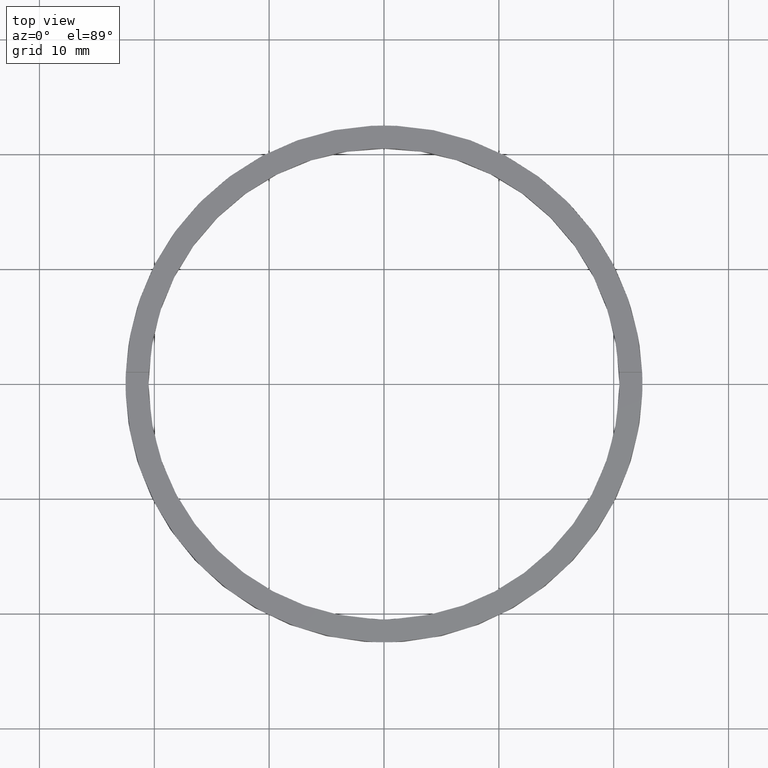
[diagram: clean part render]
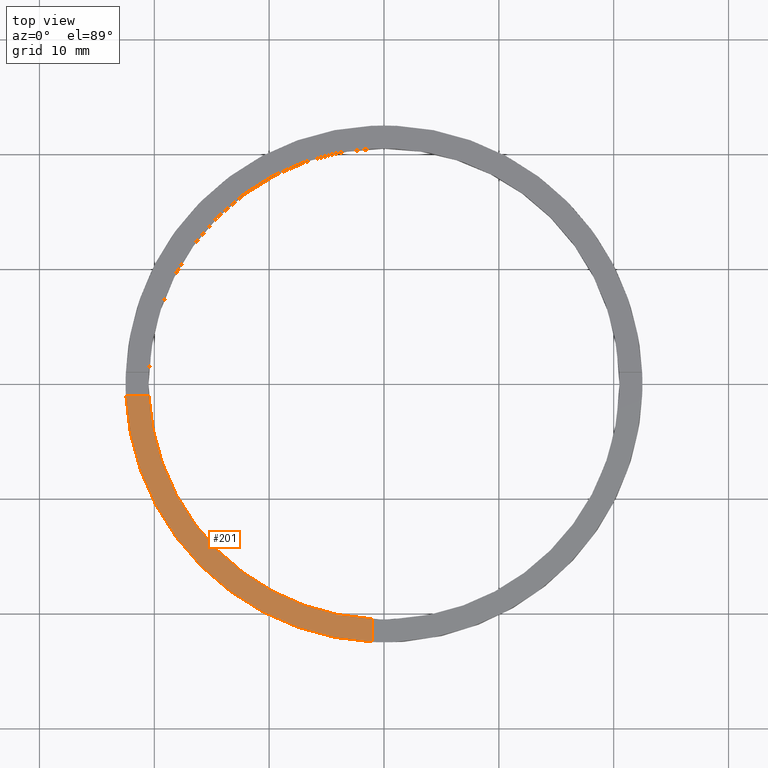
[diagram: same view with one face highlighted and labeled with its STEP entity id]
A machine part, top view. The second image highlights one B-rep face of the part: STEP entity #201.
In plain terms, the highlighted planar face has unit normal (0, 0, 1).
Its self-contained STEP definition (entity closure, byte-faithful):
#25 = VERTEX_POINT ( 'NONE', #86 ) ;
#27 = DIRECTION ( 'NONE',  ( 1.000000000000000000, 0.000000000000000000, -0.000000000000000000 ) ) ;
#39 = CIRCLE ( 'NONE', #140, 22.50000000000000355 ) ;
#41 = CIRCLE ( 'NONE', #583, 20.50000000000000000 ) ;
#46 = DIRECTION ( 'NONE',  ( 1.000000000000000000, 0.000000000000000000, 0.000000000000000000 ) ) ;
#53 = EDGE_LOOP ( 'NONE', ( #351, #589, #71, #181 ) ) ;
#71 = ORIENTED_EDGE ( 'NONE', *, *, #354, .F. ) ;
#86 = CARTESIAN_POINT ( 'NONE',  ( -20.47559522944326815, -1.000000000000024869, 2.500000000000000000 ) ) ;
#93 = VECTOR ( 'NONE', #641, 1000.000000000000000 ) ;
#106 = LINE ( 'NONE', #273, #632 ) ;
#140 = AXIS2_PLACEMENT_3D ( 'NONE', #660, #409, #46 ) ;
#158 = CARTESIAN_POINT ( 'NONE',  ( -1.000000000000161204, -20.47559522944325749, 2.500000000000000000 ) ) ;
#181 = ORIENTED_EDGE ( 'NONE', *, *, #769, .T. ) ;
#192 = CARTESIAN_POINT ( 'NONE',  ( 0.000000000000000000, 0.000000000000000000, 2.500000000000000000 ) ) ;
#201 = ADVANCED_FACE ( 'NONE', ( #333 ), #743, .T. ) ;
#237 = CARTESIAN_POINT ( 'NONE',  ( -1.000000000000160982, -22.47776679298901570, 2.500000000000000000 ) ) ;
#265 = EDGE_CURVE ( 'NONE', #369, #519, #621, .T. ) ;
#268 = VERTEX_POINT ( 'NONE', #779 ) ;
#273 = CARTESIAN_POINT ( 'NONE',  ( -12.50000000000018829, -1.000000000000023759, 2.500000000000000000 ) ) ;
#284 = DIRECTION ( 'NONE',  ( 1.000000000000000000, 1.734723475976806848E-16, -0.000000000000000000 ) ) ;
#333 = FACE_OUTER_BOUND ( 'NONE', #53, .T. ) ;
#351 = ORIENTED_EDGE ( 'NONE', *, *, #265, .F. ) ;
#354 = EDGE_CURVE ( 'NONE', #268, #25, #106, .T. ) ;
#369 = VERTEX_POINT ( 'NONE', #158 ) ;
#394 = CARTESIAN_POINT ( 'NONE',  ( 0.000000000000000000, 0.000000000000000000, 2.500000000000000000 ) ) ;
#409 = DIRECTION ( 'NONE',  ( 0.000000000000000000, 0.000000000000000000, 1.000000000000000000 ) ) ;
#428 = DIRECTION ( 'NONE',  ( 0.000000000000000000, 0.000000000000000000, 1.000000000000000000 ) ) ;
#494 = DIRECTION ( 'NONE',  ( 1.000000000000000000, 0.000000000000000000, 0.000000000000000000 ) ) ;
#503 = DIRECTION ( 'NONE',  ( 0.000000000000000000, 0.000000000000000000, 1.000000000000000000 ) ) ;
#504 = EDGE_CURVE ( 'NONE', #25, #369, #41, .T. ) ;
#519 = VERTEX_POINT ( 'NONE', #237 ) ;
#529 = AXIS2_PLACEMENT_3D ( 'NONE', #394, #503, #27 ) ;
#548 = CARTESIAN_POINT ( 'NONE',  ( -1.000000000000162537, -12.50000000000018296, 2.500000000000000000 ) ) ;
#583 = AXIS2_PLACEMENT_3D ( 'NONE', #192, #428, #494 ) ;
#589 = ORIENTED_EDGE ( 'NONE', *, *, #504, .F. ) ;
#621 = LINE ( 'NONE', #548, #93 ) ;
#632 = VECTOR ( 'NONE', #284, 1000.000000000000000 ) ;
#641 = DIRECTION ( 'NONE',  ( 1.301042606982605074E-16, -1.000000000000000000, 0.000000000000000000 ) ) ;
#660 = CARTESIAN_POINT ( 'NONE',  ( 0.000000000000000000, 0.000000000000000000, 2.500000000000000000 ) ) ;
#743 = PLANE ( 'NONE',  #529 ) ;
#769 = EDGE_CURVE ( 'NONE', #268, #519, #39, .T. ) ;
#779 = CARTESIAN_POINT ( 'NONE',  ( -22.47776679298902636, -1.000000000000025313, 2.500000000000000000 ) ) ;